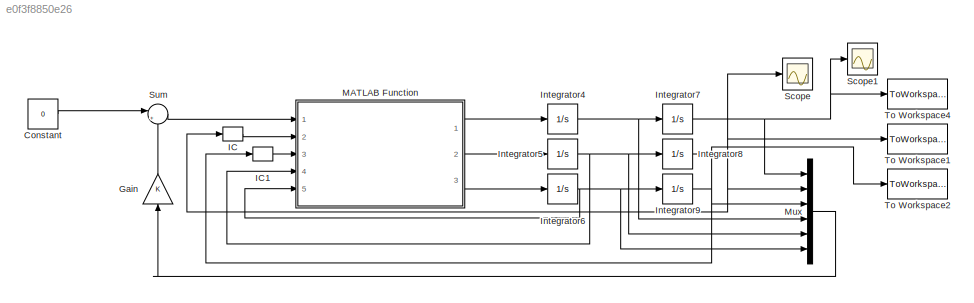
MODEL slx_e0f3f8850e26
KIND model
CONFIG AbsTol = auto
CONFIG EnableMultiTasking = off
CONFIG FixedStep = auto
CONFIG MaxStep = auto
CONFIG MinStep = auto
CONFIG RelTol = 1e-3
CONFIG SampleTimeConstraint = Unconstrained
CONFIG Solver = VariableStepAuto
CONFIG SolverName = VariableStepAuto
CONFIG StartTime = 0.0
CONFIG StopTime = 100
BLOCK [Constant] Constant
  Value = 0
BLOCK [Gain] Gain
  Gain = K
  Multiplication = Matrix(K*u)
BLOCK [InitialCondition] IC
  Value = pi/10
BLOCK [InitialCondition] IC1
  Value = pi/20
BLOCK [Integrator] Integrator4
  Ports = [1, 1]
BLOCK [Integrator] Integrator5
  Ports = [1, 1]
BLOCK [Integrator] Integrator6
  Ports = [1, 1]
BLOCK [Integrator] Integrator7
  Ports = [1, 1]
BLOCK [Integrator] Integrator8
  Ports = [1, 1]
BLOCK [Integrator] Integrator9
  Ports = [1, 1]
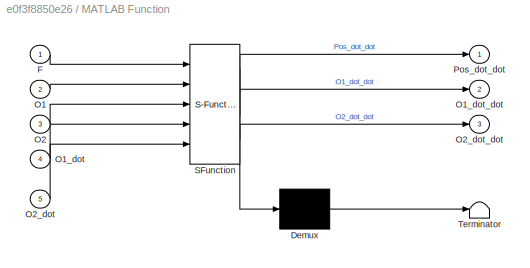
BLOCK [SubSystem] MATLAB Function
  ErrorFcn = Stateflow.Translate.translate
  PermitHierarchicalResolution = ExplicitOnly
  Ports = [5, 3]
  RequestExecContextInheritance = off
  SFBlockType = MATLAB Function
  TreatAsAtomicUnit = on
BLOCK [Demux] MATLAB Function/ Demux 
  Outputs = 1
  Ports = [1, 1]
BLOCK [S-Function] MATLAB Function/ SFunction 
  EnableBusSupport = off
  FunctionName = sf_sfun
  PortCounts = [5 4]
  Ports = [5, 4]
  SFcnIsStateOwnerBlock = off
  SFunctionDeploymentMode = off
  Tag = Stateflow S-Function 2
BLOCK [Terminator] MATLAB Function/ Terminator 
BLOCK [Inport] MATLAB Function/F
BLOCK [Inport] MATLAB Function/O1
  Port = 2
BLOCK [Inport] MATLAB Function/O1_dot
  Port = 4
BLOCK [Outport] MATLAB Function/O1_dot_dot
  Port = 2
BLOCK [Inport] MATLAB Function/O2
  Port = 3
BLOCK [Inport] MATLAB Function/O2_dot
  Port = 5
BLOCK [Outport] MATLAB Function/O2_dot_dot
  Port = 3
BLOCK [Outport] MATLAB Function/Pos_dot_dot
BLOCK [Mux] Mux
  DisplayOption = bar
  Inputs = 6
  Ports = [6, 1]
BLOCK [Scope] Scope
  Floating = off
  NumInputPorts = 1
  Ports = [1]
  ScopeSpecificationString = Simulink.scopes.TimeScopeBlockCfg('CurrentConfiguration', extmgr.ConfigurationSet(extmgr.Configuration('Core','General UI',true),extmgr.Configuration('Core','Source UI',true),extmgr.Configuration('Sources','WiredSimulink',true),extmgr.Configuration('Visuals','Time Domain',true,'SerializedDisplays',{struct('MinYLimReal','-0.000000000053','MaxYLimReal','0.000000000022','YLabelReal','','MinYLimMag','...<+1387ch>
BLOCK [Scope] Scope1
  Floating = off
  NumInputPorts = 1
  Ports = [1]
  ScopeSpecificationString = Simulink.scopes.TimeScopeBlockCfg('CurrentConfiguration', extmgr.ConfigurationSet(extmgr.Configuration('Core','General UI',true),extmgr.Configuration('Core','Source UI',true),extmgr.Configuration('Sources','WiredSimulink',true,'DataLoggingVariableName','ScopeData1'),extmgr.Configuration('Visuals','Time Domain',true,'SerializedDisplays',{struct('MinYLimReal','-0.000007','MaxYLimReal','0.000008','YL...<+1378ch>
BLOCK [Sum] Sum
  Inputs = |+-
  Ports = [2, 1]
BLOCK [ToWorkspace] To Workspace1
  FixptAsFi = on
  MaxDataPoints = inf
  Ports = [1]
  SampleTime = -1
  Save2DSignal = 2-D array (concatenate along first dimension)
  VariableName = O1_sim
BLOCK [ToWorkspace] To Workspace2
  FixptAsFi = on
  MaxDataPoints = inf
  Ports = [1]
  SampleTime = -1
  Save2DSignal = 2-D array (concatenate along first dimension)
  VariableName = O2_sim
BLOCK [ToWorkspace] To Workspace4
  FixptAsFi = on
  MaxDataPoints = inf
  Ports = [1]
  SampleTime = -1
  Save2DSignal = 2-D array (concatenate along first dimension)
  VariableName = x_sim
LINE Constant:1 -> Sum:1
LINE Gain:1 -> Sum:2
LINE IC1:1 -> MATLAB Function:3
LINE IC:1 -> MATLAB Function:2
NET Integrator4:1 -> Integrator7:1, Mux:4
NET Integrator5:1 -> Integrator8:1, MATLAB Function:4, Mux:5
NET Integrator6:1 -> Integrator9:1, MATLAB Function:5, Mux:6
NET Integrator7:1 -> Mux:1, Scope1:1, To Workspace4:1
NET Integrator8:1 -> IC:1, Mux:2, Scope:1, To Workspace1:1
NET Integrator9:1 -> IC1:1, Mux:3, To Workspace2:1
LINE MATLAB Function:1 -> Integrator4:1
LINE MATLAB Function:2 -> Integrator5:1
LINE MATLAB Function:3 -> Integrator6:1
LINE Mux:1 -> Gain:1
LINE Sum:1 -> MATLAB Function:1
note: NET lines group one-source signal fan-out (src -> all destinations, sorted); 1:1 wires keep LINE
CHART MATLAB Function states=1 transitions=1
  STATE_LABEL 'eML_blk_kernel()'
  STATE_LABEL 'SCRIPT:\nfunction [Pos_dot_dot,O1_dot_dot,O2_dot_dot] = output(F,O1,O2,O1_dot,O2_dot)\n\nM = 1000;\nm1 = 100;\nm2 = 100;\nL1 = 20;\nL2 = 10;\ng = 10;\n\n\n% num = F- m1*g*sin(O1)*cos(O1)- m2*g*sin(O2)*cos(O2)- m1*L1*(O1_dot^2)*sin(O1)- m2*L2*(O2_dot^2)*sin(O2);\n% den = (M+m1+m2) - m1*(cos(O1))^2 - m2*(cos(O2))^2;\n% Pos_dot_dot = num/den;\n% \n% O1_dot_dot= (Pos_dot_dot*cos(O1)-g*sin(O1))/L1;\n% \n% O2_dot_dot= (...<+582ch>'
